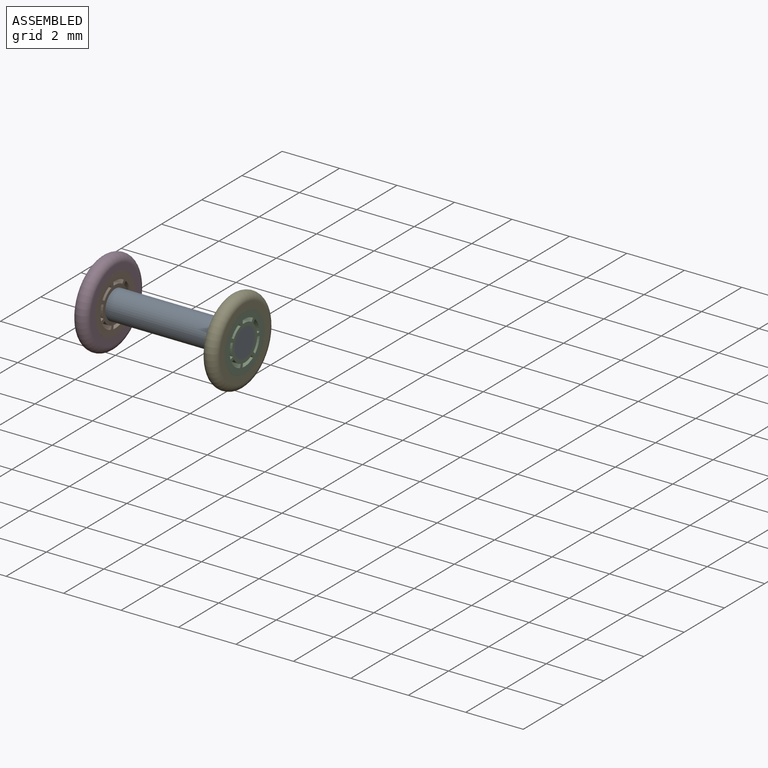
[diagram: assembled view]
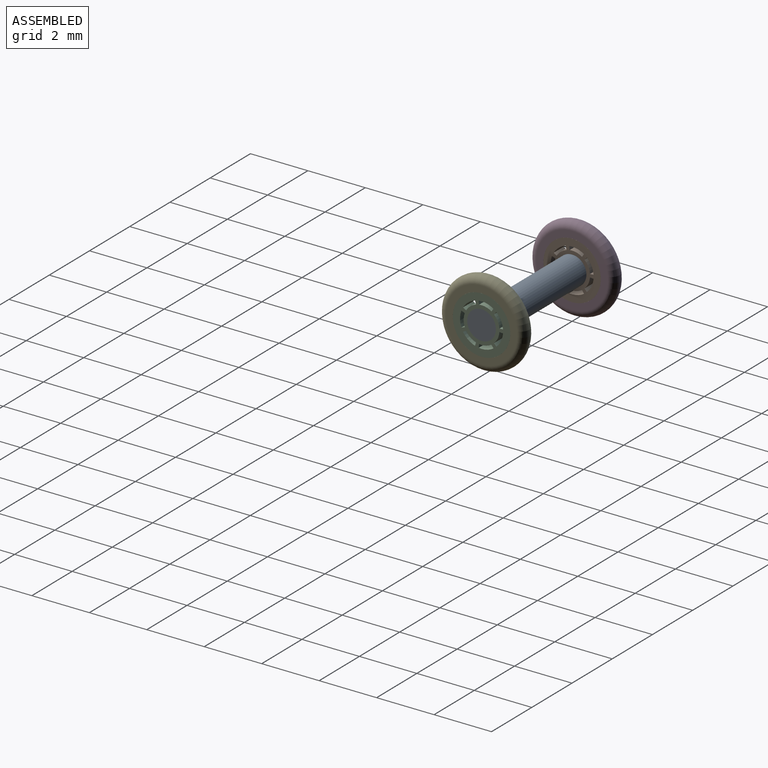
[diagram: assembled view, second angle]
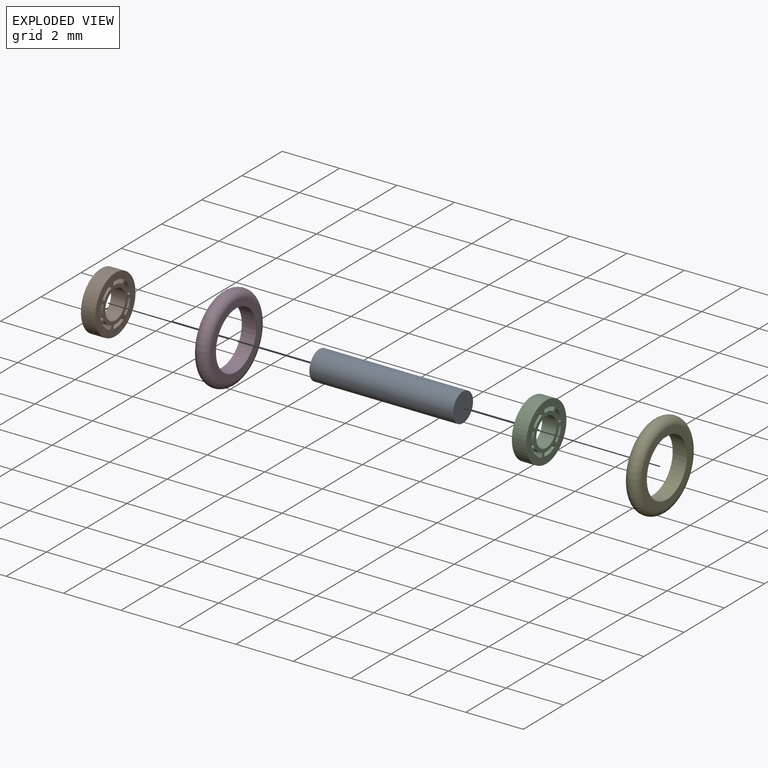
[diagram: exploded view]
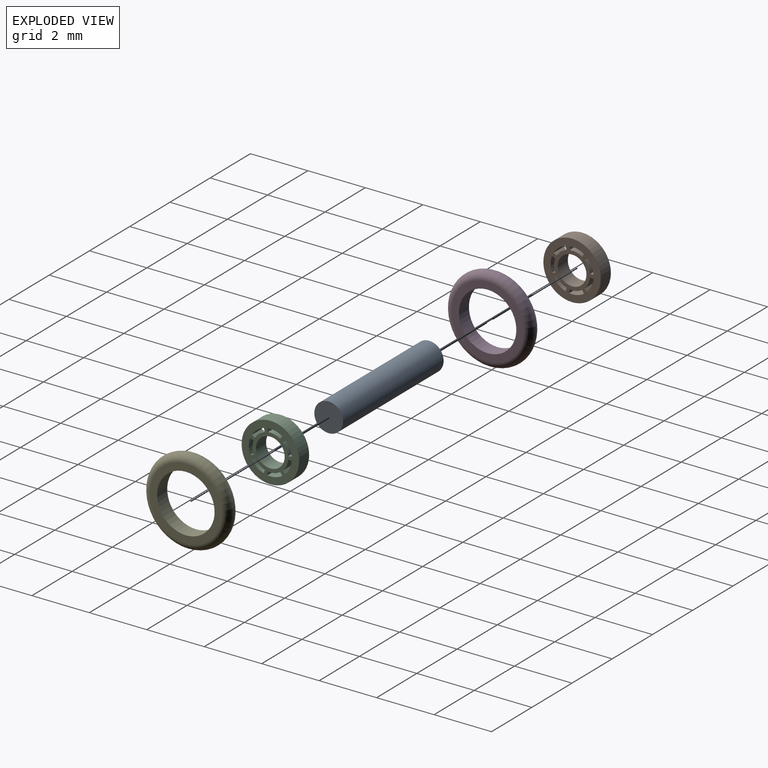
[diagram: exploded view, second angle]
ASSEMBLY  parts=5 mates=5
PART A: 3 faces, bbox 5x1x1 mm
  f0: cylinder r=0.5mm len=5mm, axis (-1,0,0), area 15.7mm2, adj f1,f2
  f1: plane 1x1mm, normal (1,0,0), area 0.8mm2, adj f0
  f2: plane 1x1mm, normal (-1,0,0), area 0.8mm2, adj f0
PART B: 32 faces, bbox 0.5x2x2 mm
  f0: plane 0.5x0.09mm, normal (0,0.72,-0.69), area 0.1mm2, adj f1,f22,f30,f31
  f1: cylinder r=0.75mm len=0.5mm, axis (1,0,0), area 0.3mm2, adj f0,f2,f30,f31
  f2: plane 0.5x0.12mm, normal (0,-0.09,1), area 0.1mm2, adj f1,f22,f30,f31
  f3: cylinder r=0.75mm len=0.52mm, axis (1,0,0), area 0.3mm2, adj f4,f23,f30,f31
  f4: plane 0.5x0.1mm, normal (0,-0.83,0.55), area 0.1mm2, adj f3,f5,f30,f31
  f5: cylinder r=0.62mm len=0.5mm, axis (1,0,0), area 0.2mm2, adj f4,f23,f30,f31
  f6: cylinder r=0.75mm len=0.5mm, axis (1,0,0), area 0.3mm2, adj f7,f24,f30,f31
  f7: plane 0.5x0.12mm, normal (0,-0.95,-0.31), area 0.1mm2, adj f6,f8,f30,f31
  f8: cylinder r=0.62mm len=0.5mm, axis (1,0,0), area 0.2mm2, adj f7,f24,f30,f31
  f9: cylinder r=0.75mm len=0.53mm, axis (1,0,0), area 0.3mm2, adj f10,f25,f30,f31
  f10: plane 0.5x0.12mm, normal (0,-0.35,-0.94), area 0.1mm2, adj f9,f11,f30,f31
  f11: cylinder r=0.62mm len=0.5mm, axis (1,0,0), area 0.2mm2, adj f10,f25,f30,f31
  f12: cylinder r=0.75mm len=0.5mm, axis (1,0,0), area 0.3mm2, adj f13,f26,f30,f31
  f13: plane 0.5x0.11mm, normal (0,0.51,-0.86), area 0.1mm2, adj f12,f14,f30,f31
  f14: cylinder r=0.62mm len=0.5mm, axis (1,0,0), area 0.2mm2, adj f13,f26,f30,f31
  f15: cylinder r=0.75mm len=0.52mm, axis (1,0,0), area 0.3mm2, adj f16,f27,f30,f31
  f16: plane 0.5x0.12mm, normal (0,0.99,-0.14), area 0.1mm2, adj f15,f17,f30,f31
  f17: cylinder r=0.62mm len=0.5mm, axis (1,0,0), area 0.2mm2, adj f16,f27,f30,f31
  f18: cylinder r=0.75mm len=0.5mm, axis (1,0,0), area 0.3mm2, adj f19,f28,f30,f31
  f19: plane 0.5x0.09mm, normal (0,0.72,0.69), area 0.1mm2, adj f18,f20,f30,f31
  f20: cylinder r=0.62mm len=0.5mm, axis (1,0,0), area 0.2mm2, adj f19,f28,f30,f31
  f21: cylinder r=1mm len=2mm, axis (1,0,0), area 3.1mm2, adj f30,f31
  f22: cylinder r=0.62mm len=0.5mm, axis (1,0,0), area 0.2mm2, adj f0,f2,f30,f31
  f23: plane 0.5x0.12mm, normal (0,0.99,0.14), area 0.1mm2, adj f3,f5,f30,f31
  f24: plane 0.5x0.11mm, normal (0,0.51,0.86), area 0.1mm2, adj f6,f8,f30,f31
  f25: plane 0.5x0.12mm, normal (0,-0.35,0.94), area 0.1mm2, adj f9,f11,f30,f31
  f26: plane 0.5x0.12mm, normal (0,-0.95,0.31), area 0.1mm2, adj f12,f14,f30,f31
  f27: plane 0.5x0.1mm, normal (0,-0.83,-0.55), area 0.1mm2, adj f15,f17,f30,f31
  f28: plane 0.5x0.12mm, normal (0,-0.09,-1), area 0.1mm2, adj f18,f20,f30,f31
  f29: cylinder r=0.5mm len=1mm, axis (1,0,0), area 1.6mm2, adj f30,f31
  f30: plane 2x2mm, normal (-1,0,0), area 1.9mm2, adj f0,f1,f2,f3,f4,f5,f6,f7
  f31: plane 2x2mm, normal (1,0,0), area 1.9mm2, adj f0,f1,f2,f3,f4,f5,f6,f7
PART C: same geometry as B
PART D: 4 faces, bbox 0.5x3.2x3.2 mm
  f0: plane 2.5x2.5mm, normal (-1,0,0), area 1.8mm2, adj f1,f3
  f1: cylinder r=1mm len=2mm, axis (1,0,0), area 3.1mm2, adj f0,f2
  f2: plane 2.5x2.5mm, normal (1,0,0), area 1.8mm2, adj f1,f3
  f3: torus R=1.25mm, axis (1,0,0), area 7mm2, adj f0,f2
PART E: same geometry as D
PLACE A at identity fixed
PLACE B t=(-4.5,0,0)mm
PLACE C at identity
PLACE D t=(-4.5,0,0)mm
PLACE E at identity
MATE fastened E.f3 <-> C.f29  axis (1,0,0) through (2.5,0,0)mm
MATE fastened B.f29 <-> D.f3  axis (-1,0,0) through (-2.5,0,0)mm
MATE fastened A.f0 <-> C.f29  axis (1,0,0) through (2.5,0,0)mm
MATE fastened D.f3 <-> B.f29  axis (1,0,0) through (-2,0,0)mm
MATE fastened A.f0 <-> B.f29  axis (-1,0,0) through (-2.5,0,0)mm
